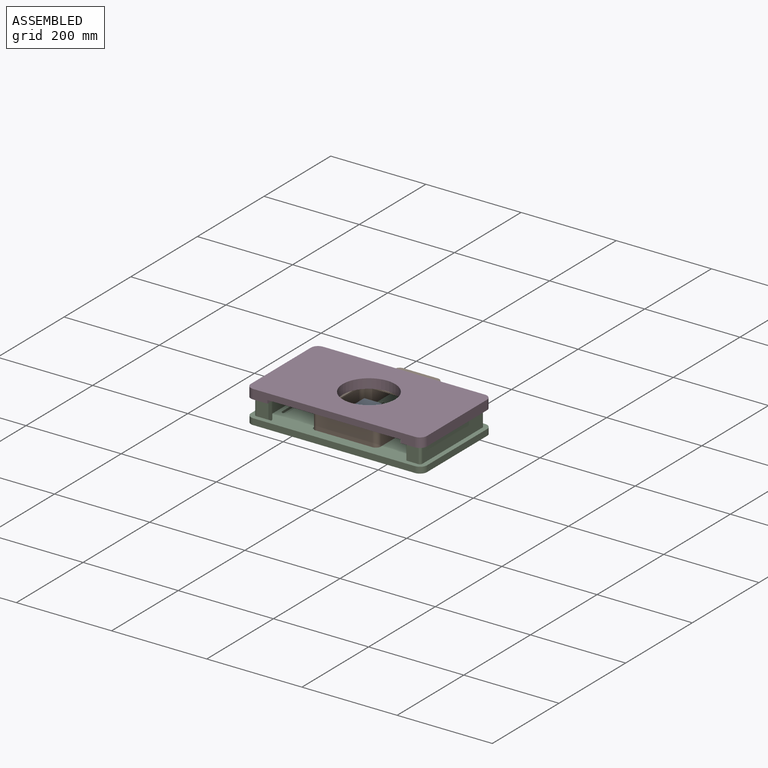
[diagram: assembled view]
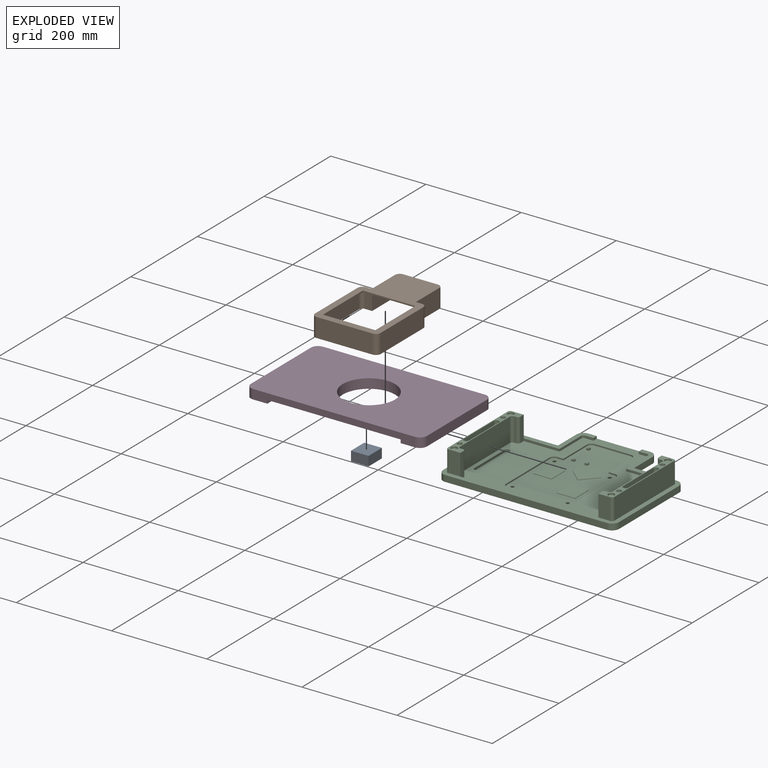
[diagram: exploded view]
GUIDED TOUR — MATED ASSEMBLY (Onshape document f54cb566b7586fcd0a70b049, AutoMate assembly f54cb566b7586fcd0a70b049_cbd9ad29623dc7cc225ec3bc_be883ea0a3c4a5ebd71cd943_default)

This assembly has 4 components, labeled P0..P3 below (a component is one placed occurrence of a part; the same part can appear more than once), held together by 2 mates. A mate is a constraint between two components; its type names the relative motion it leaves free:
  PLANAR — leaves sliding in the plane through the listed point (normal = the listed direction) and rotation about that normal free.
Axis/direction vectors are unit vectors and 'through' points are millimeter coordinates, both in the assembly's world frame.

MATES
  1. PLANAR "Planar 1": P1 <-> P2, direction (0.000, 0.000, -1.000) through (-4.21, 13.48, 19.95) mm
  2. PLANAR "Planar 2": P0 <-> P2, direction (0.000, 0.000, -1.000) through (-31.36, 9.55, 19.95) mm

ASSEMBLY ORDER
  1. P3 — the base component [order verified]
  2. P2 [order verified]
  3. P1 [order verified]
  4. P0 [order verified]
Order-tag legend:
  [order verified] — this step's position reverses a verified removal order: the component was checked to insert without passing through the ones already placed.

Of the 4 components, 2 carry the full construction recipe — the FeatureScript program that regenerates the part's solid from scratch; the rest are supplied as boundary geometry only.
Each toured component is shown spotlighted twice — in the assembled view, then in the exploded view, where a leader line traces a displaced component back to its assembled socket (saturated green if recipe-attached, orange if geometry-only; every other component desaturated gray) — followed by its recipe or geometry summary and the mates that hold it.
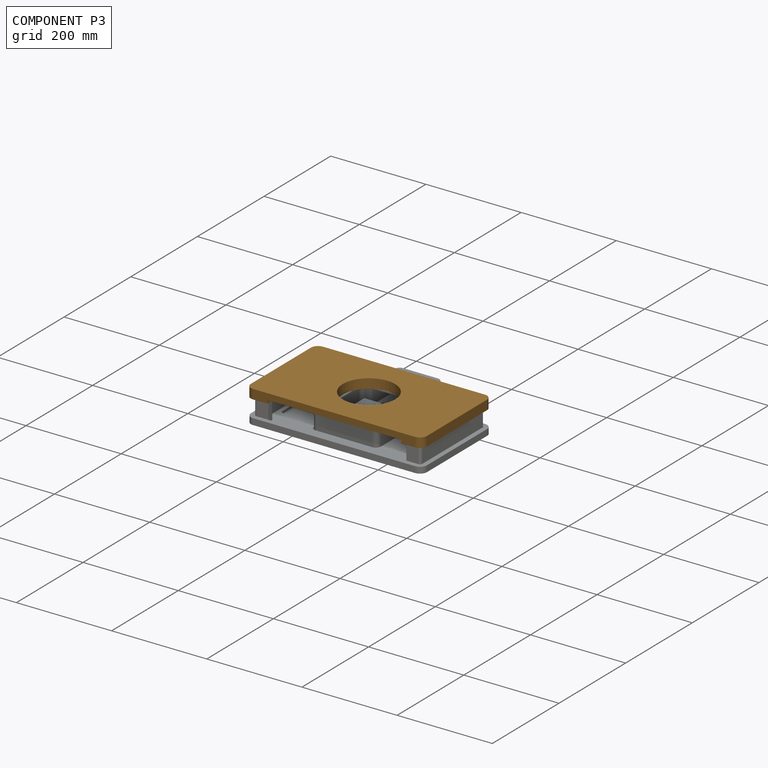
[diagram: component P3 — assembled]
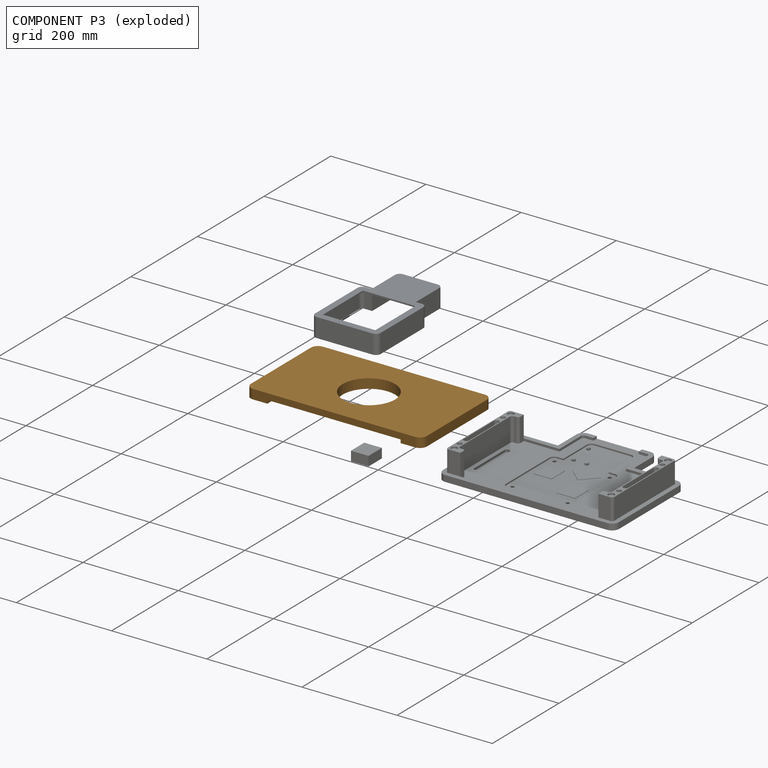
[diagram: component P3 — exploded]
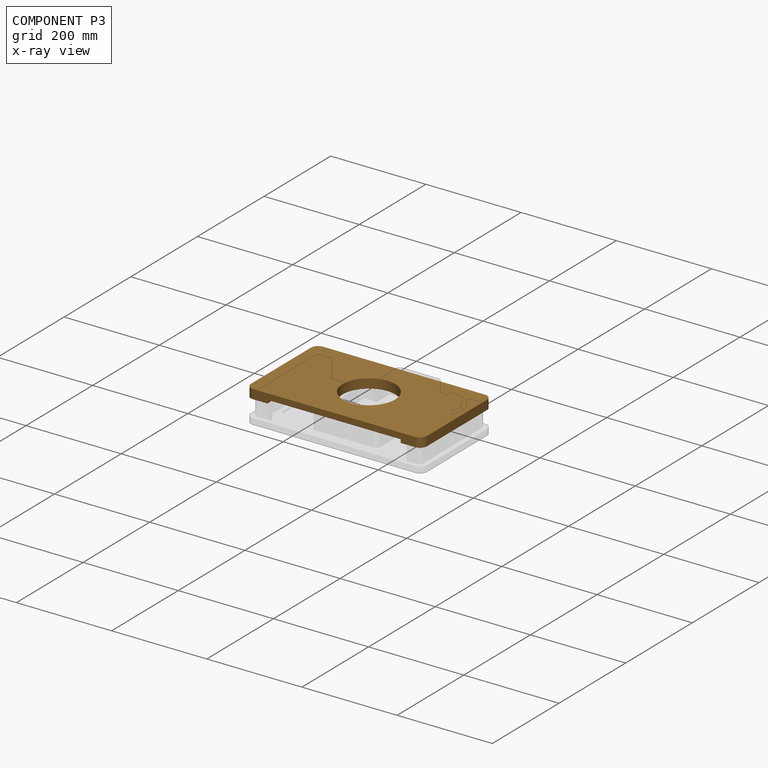
[diagram: component P3 — x-ray view]
COMPONENT P3 — geometry summary (no construction recipe available for this part):
  bounding box: 370.0 x 210.0 x 20.0 mm
  B-rep topology: 1 solid, 129 faces, 622 edges
  volume: 989934 mm^3 (64% of its bounding box)
  symmetry: 2-fold rotationally symmetric about the z axis; mirror-symmetric across its x mid-plane, y mid-plane
Held by: no mates (free).
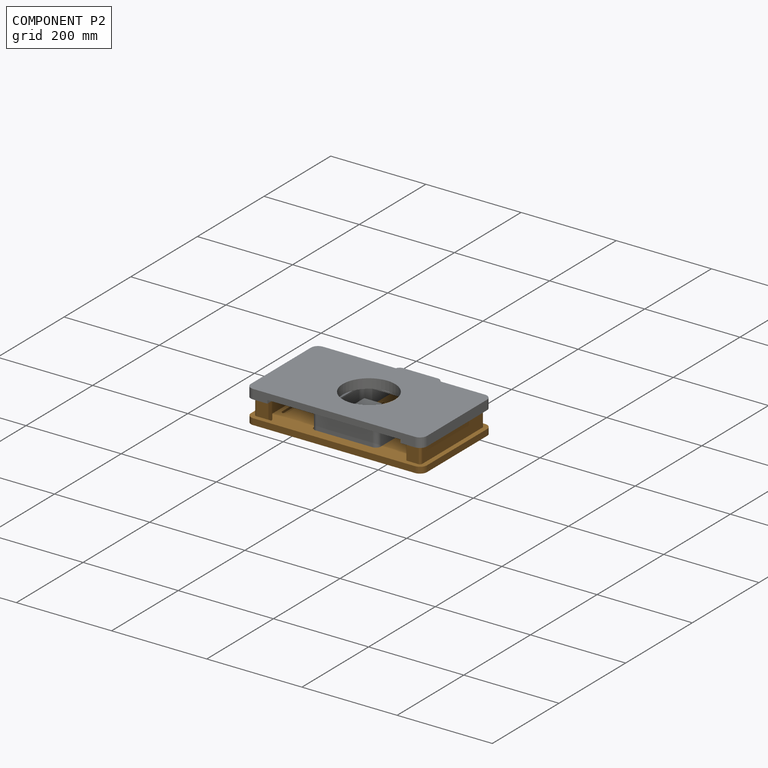
[diagram: component P2 — assembled]
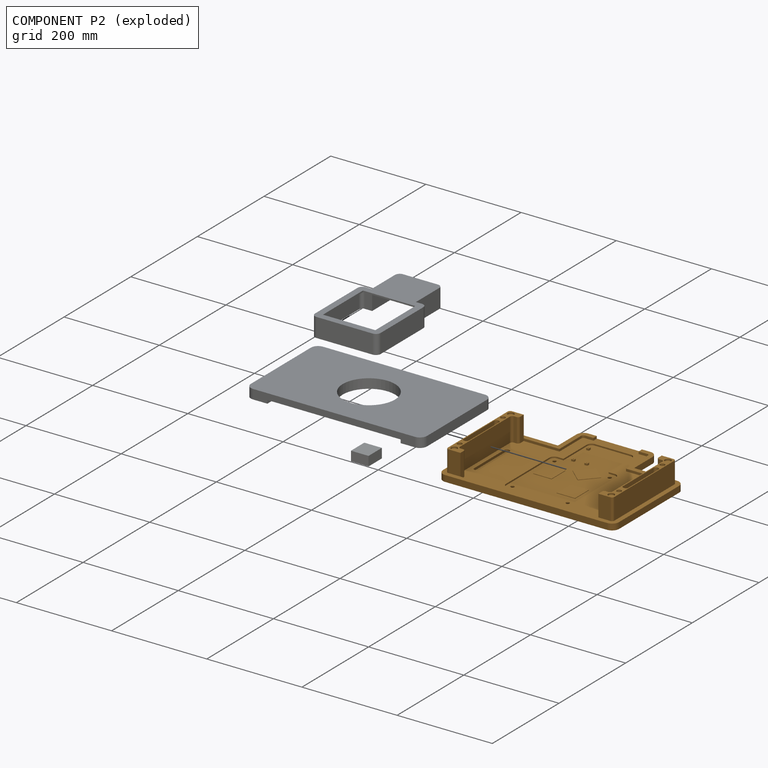
[diagram: component P2 — exploded]
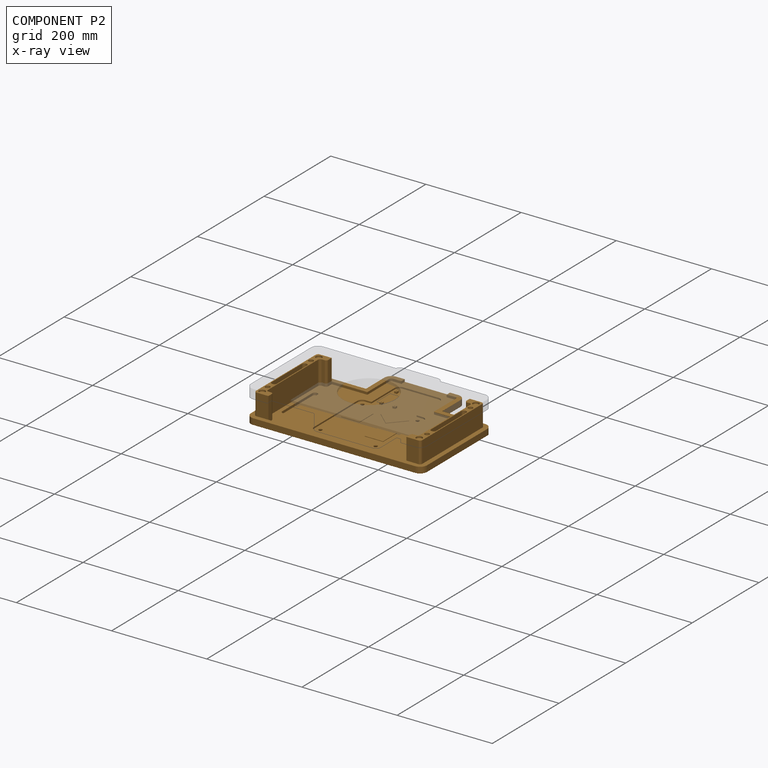
[diagram: component P2 — x-ray view]
COMPONENT P2 — geometry summary (no construction recipe available for this part):
  bounding box: 370.0 x 280.0 x 58.0 mm
  B-rep topology: 1 solid, 197 faces, 990 edges
  volume: 908401 mm^3 (15% of its bounding box)
  symmetry: mirror-symmetric across its x mid-plane
Held by: PLANAR mate "Planar 1" to P1; PLANAR mate "Planar 2" to P0.
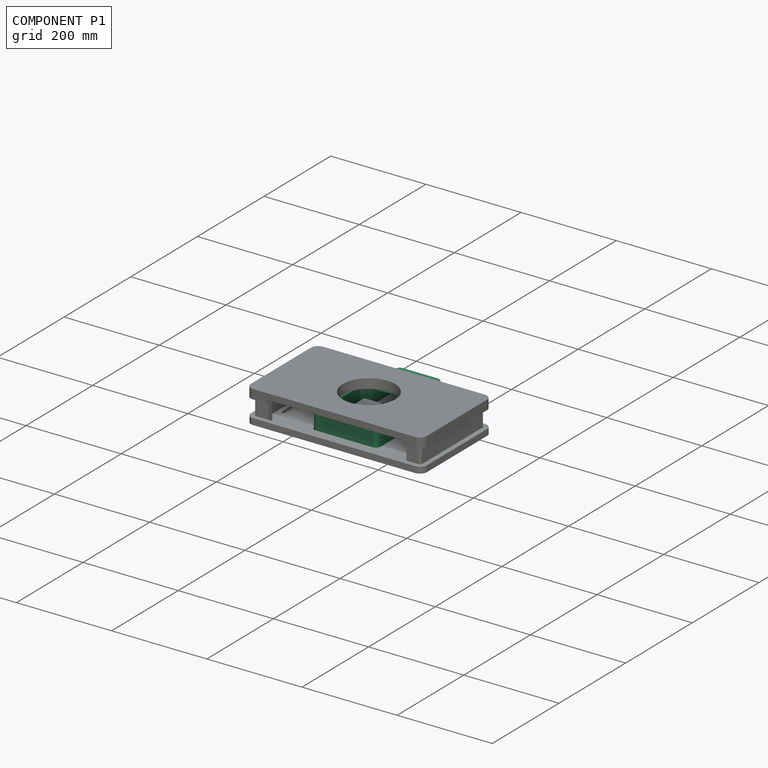
[diagram: component P1 — assembled]
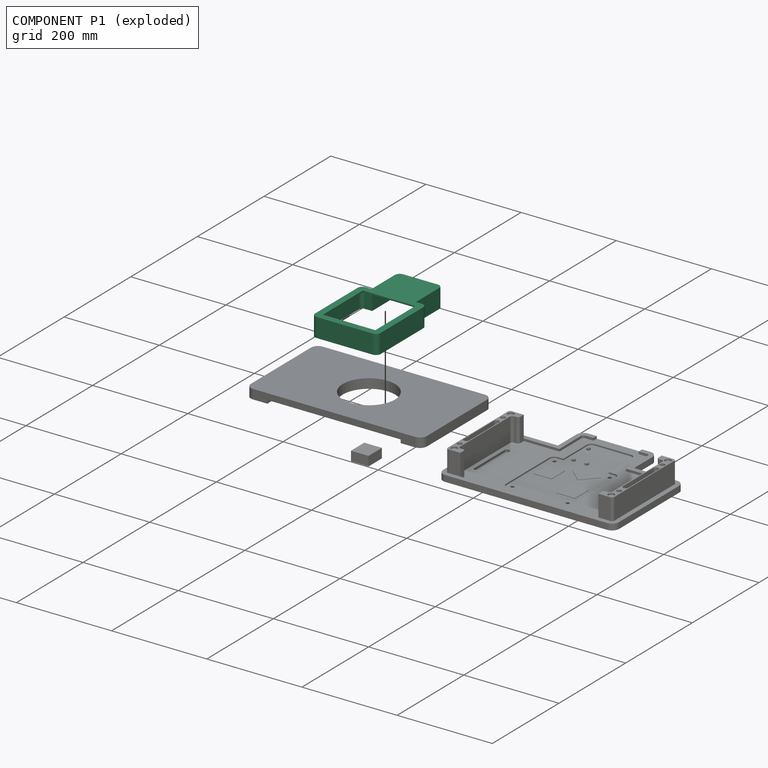
[diagram: component P1 — exploded]
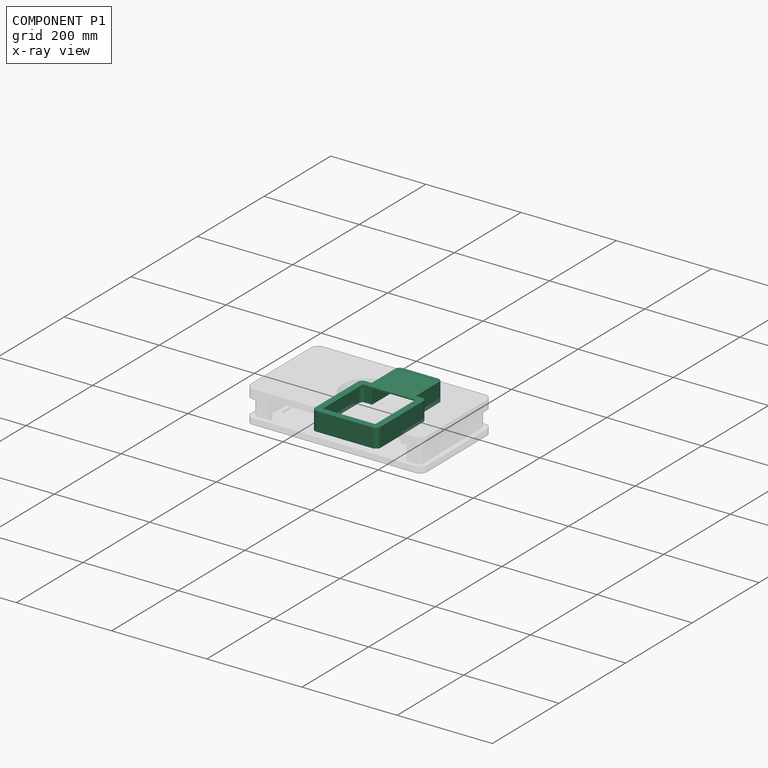
[diagram: component P1 — x-ray view]
COMPONENT P1 — recipe-attached (CADFS 00190204, mesh-verified: the recipe's output STEP matches this component's geometry to below the mesh-comparison resolution (tessellation chordal tolerance ~0.404 mm)).
Held by: PLANAR mate "Planar 1" to P2.
Construction recipe (FeatureScript — the CAD program that rebuilds this solid; sketch coordinates are in the units given by the * unit suffixes, e.g. mm):

FeatureScript 1890;
import(path : "onshape/std/geometry.fs", version : "1890.0");
import(path : "onshape/std/common.fs", version : "1890.0");
const mm = millimeter;
const VERTEX = EntityType.VERTEX;
const EDGE = EntityType.EDGE;
const FACE = EntityType.FACE;
const BODY = EntityType.BODY;
function v(x, y){return vector(x, y);}
function OD(order){return orderDisambiguation(order);}
function OSD(set){return originalSetDisambiguation(set);}
function TD(topology){return topologyDisambiguation(topology);}
function TDD(query){return trueDependencyDisambiguation(query);}
function sQuery(a, b, c) {return sketchEntityQuery(a, b, c);}

annotation { "Feature Type Name" : "Feature", "Feature Type Description" : "" }
export const myFeature = defineFeature(function(context is Context, id is Id, definition is map)
    precondition{}
    {
        {
            var Q0;
            Q0=qCreatedBy(makeId("Top.planeOp"),FACE);
            var sketch = newSketch(context, id + "F0", { "sketchPlane" : qUnion([Q0])});
            skLineSegment(sketch, "E0.bottom", {"start": v(-59, -74) * mm, "end": v(59, -74) * mm});
            skLineSegment(sketch, "E0.left", {"start": v(-69, -64) * mm, "end": v(-69, 64) * mm});
            skLineSegment(sketch, "E0.right", {"start": v(69, -64) * mm, "end": v(69, 64) * mm});
            skPoint(sketch, "E0.middle", {"position": v(0, 0) * mm});
            skPoint(sketch, "E1.top.start.orphan", {"position": v(-41.03, -154) * mm});
            skPoint(sketch, "E2.trimOffspring.end.orphan", {"position": v(51.97, -154) * mm});
            skPoint(sketch, "E1.left.start.orphan", {"position": v(-51.97, 154) * mm});
            skPoint(sketch, "E1.right.start.orphan", {"position": v(41.03, 154) * mm});
            skLineSegment(sketch, "E3", {"start": v(-59, 74) * mm, "end": v(-46.5, 74) * mm});
            skLineSegment(sketch, "E4", {"start": v(-46.5, 74) * mm, "end": v(-46.5, 144) * mm});
            skLineSegment(sketch, "E5", {"start": v(-36.5, 154) * mm, "end": v(36.5, 154) * mm});
            skLineSegment(sketch, "E6", {"start": v(46.5, 144) * mm, "end": v(46.5, 74) * mm});
            skLineSegment(sketch, "E7", {"start": v(46.5, 74) * mm, "end": v(59, 74) * mm});
            skPoint(sketch, "E8.visualSharp", {"position": v(-69, 74) * mm});
            skArc(sketch, "E8.filletArc", {"start": v(-59, 74) * mm, "mid": v(-66.07, 71.07) * mm, "end": v(-69, 64) * mm});
            skPoint(sketch, "E9.visualSharp", {"position": v(69, 74) * mm});
            skArc(sketch, "E9.filletArc", {"start": v(69, 64) * mm, "mid": v(66.07, 71.07) * mm, "end": v(59, 74) * mm});
            skPoint(sketch, "E10.visualSharp", {"position": v(46.5, 154) * mm});
            skArc(sketch, "E10.filletArc", {"start": v(46.5, 144) * mm, "mid": v(43.57, 151.07) * mm, "end": v(36.5, 154) * mm});
            skPoint(sketch, "E11.visualSharp", {"position": v(-46.5, 154) * mm});
            skArc(sketch, "E11.filletArc", {"start": v(-36.5, 154) * mm, "mid": v(-43.57, 151.07) * mm, "end": v(-46.5, 144) * mm});
            skPoint(sketch, "E12.visualSharp", {"position": v(-69, -74) * mm});
            skArc(sketch, "E12.filletArc", {"start": v(-69, -64) * mm, "mid": v(-66.07, -71.07) * mm, "end": v(-59, -74) * mm});
            skPoint(sketch, "E13.visualSharp", {"position": v(69, -74) * mm});
            skArc(sketch, "E13.filletArc", {"start": v(59, -74) * mm, "mid": v(66.07, -71.07) * mm, "end": v(69, -64) * mm});
            skSolve(sketch);
        }
        {
            var Q0;
            Q0 = qSketchRegion(id + "F0", true);
            extrude(context, id + "F1", {"entities" : qUnion([Q0]), "depth" : 40 * mm, "offsetDistance" : 25 * mm});
        }
        {
            var Q0;
            Q0=makeQuery(id+"F1.opExtrude","CAP_FACE",FACE,{"disambiguationData":[OSD([sQuery(id+"F0.wireOp",EDGE,"E0.bottom"),sQuery(id+"F0.wireOp",EDGE,"E0.left"),sQuery(id+"F0.wireOp",EDGE,"E0.right"),sQuery(id+"F0.wireOp",EDGE,"E3"),sQuery(id+"F0.wireOp",EDGE,"E4"),sQuery(id+"F0.wireOp",EDGE,"E5"),sQuery(id+"F0.wireOp",EDGE,"E6"),sQuery(id+"F0.wireOp",EDGE,"E7"),sQuery(id+"F0.wireOp",EDGE,"E8.filletArc"),sQuery(id+"F0.wireOp",EDGE,"E9.filletArc"),sQuery(id+"F0.wireOp",EDGE,"E10.filletArc"),sQuery(id+"F0.wireOp",EDGE,"E11.filletArc"),sQuery(id+"F0.wireOp",EDGE,"E12.filletArc"),sQuery(id+"F0.wireOp",EDGE,"E13.filletArc")])],"isStart":true});
            shell(context, id + "F2", {"entities" : qUnion([Q0]), "thickness" : 3 * mm});
        }
        {
            var Q0;
            Q0=makeQuery(id+"F2.opShell","OFFSET_FACE",FACE,{"disambiguationData":[OSD([sQuery(id+"F0.wireOp",EDGE,"E0.bottom"),sQuery(id+"F0.wireOp",EDGE,"E0.left"),sQuery(id+"F0.wireOp",EDGE,"E0.right"),sQuery(id+"F0.wireOp",EDGE,"E3"),sQuery(id+"F0.wireOp",EDGE,"E4"),sQuery(id+"F0.wireOp",EDGE,"E5"),sQuery(id+"F0.wireOp",EDGE,"E6"),sQuery(id+"F0.wireOp",EDGE,"E7"),sQuery(id+"F0.wireOp",EDGE,"E8.filletArc"),sQuery(id+"F0.wireOp",EDGE,"E9.filletArc"),sQuery(id+"F0.wireOp",EDGE,"E10.filletArc"),sQuery(id+"F0.wireOp",EDGE,"E11.filletArc"),sQuery(id+"F0.wireOp",EDGE,"E12.filletArc"),sQuery(id+"F0.wireOp",EDGE,"E13.filletArc")])]});
            var sketch = newSketch(context, id + "F3", { "sketchPlane" : qUnion([Q0])});
            skLineSegment(sketch, "E14.bottom", {"start": v(-55, 60) * mm, "end": v(55, 60) * mm});
            skLineSegment(sketch, "E14.top", {"start": v(-55, -60) * mm, "end": v(55, -60) * mm});
            skLineSegment(sketch, "E14.left", {"start": v(-55, 60) * mm, "end": v(-55, -60) * mm});
            skLineSegment(sketch, "E14.right", {"start": v(55, 60) * mm, "end": v(55, -60) * mm});
            skSolve(sketch);
        }
        {
            var Q0;
            Q0 = qSketchRegion(id + "F3", true);
            extrude(context, id + "F4", {"entities" : qUnion([Q0]), "operationType" : NewBodyOperationType.REMOVE, "oppositeDirection" : true, "depth" : 25 * mm, "offsetDistance" : 25 * mm});
        }
    });
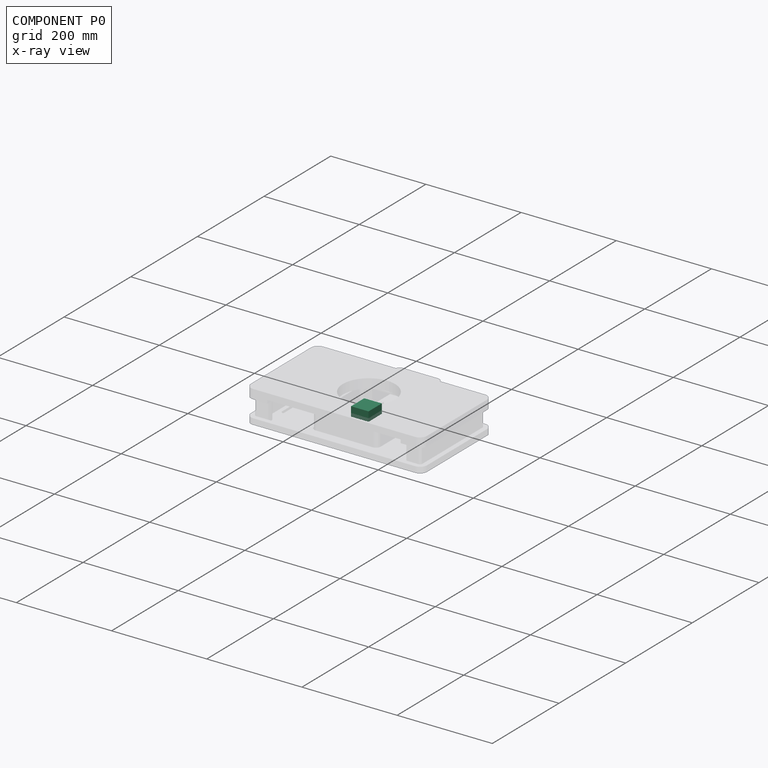
[diagram: component P0 — x-ray view]
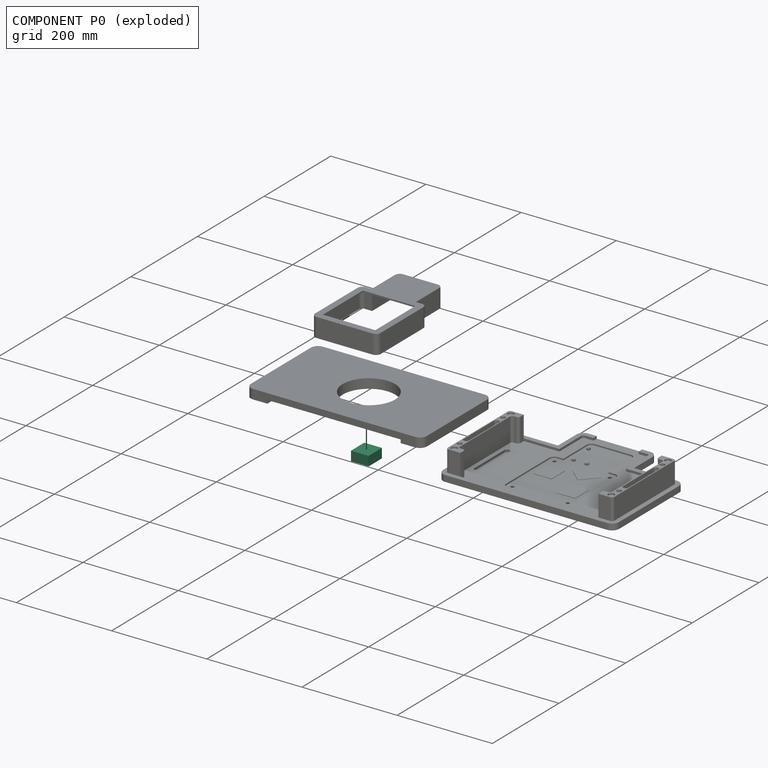
[diagram: component P0 — exploded]
COMPONENT P0 — recipe-attached (CADFS 00190205, mesh-verified: the recipe's output STEP matches this component's geometry to below the mesh-comparison resolution (tessellation chordal tolerance ~0.0871 mm)).
Held by: PLANAR mate "Planar 2" to P2.
Construction recipe (FeatureScript — the CAD program that rebuilds this solid; sketch coordinates are in the units given by the * unit suffixes, e.g. mm):

FeatureScript 1890;
import(path : "onshape/std/geometry.fs", version : "1890.0");
import(path : "onshape/std/common.fs", version : "1890.0");
const mm = millimeter;
const VERTEX = EntityType.VERTEX;
const EDGE = EntityType.EDGE;
const FACE = EntityType.FACE;
const BODY = EntityType.BODY;
function v(x, y){return vector(x, y);}
function OD(order){return orderDisambiguation(order);}
function OSD(set){return originalSetDisambiguation(set);}
function TD(topology){return topologyDisambiguation(topology);}
function TDD(query){return trueDependencyDisambiguation(query);}
function sQuery(a, b, c) {return sketchEntityQuery(a, b, c);}

annotation { "Feature Type Name" : "Feature", "Feature Type Description" : "" }
export const myFeature = defineFeature(function(context is Context, id is Id, definition is map)
    precondition{}
    {
        {
            var Q0;
            Q0=qCreatedBy(makeId("Top.planeOp"),FACE);
            var sketch = newSketch(context, id + "F0", { "sketchPlane" : qUnion([Q0])});
            skLineSegment(sketch, "E0.bottom", {"start": v(-17.5, 21.42) * mm, "end": v(2.5, 21.42) * mm});
            skLineSegment(sketch, "E0.top", {"start": v(-17.5, -18.58) * mm, "end": v(2.5, -18.58) * mm});
            skLineSegment(sketch, "E0.left", {"start": v(-17.5, 21.42) * mm, "end": v(-17.5, -18.58) * mm});
            skLineSegment(sketch, "E0.right", {"start": v(2.5, 21.42) * mm, "end": v(2.5, -18.58) * mm});
            skSolve(sketch);
        }
        {
            var Q0;
            Q0=makeQuery(id+"F0.imprint","IMPRINT",FACE,{"disambiguationData":[TD([[makeQuery(id+"F0.imprint","IMPRINT",EDGE,{"derivedFrom":sQuery(id+"F0.wireOp",EDGE,"E0.bottom")}),-1.0]])]});
            extrude(context, id + "F1", {"entities" : qUnion([Q0]), "depth" : 37 * mm, "offsetDistance" : 25 * mm});
        }
    });
PROVENANCE & LICENSES
Assembly (occurrences, transforms, mates, per-part STEP geometry): AutoMate dataset, Zenodo record 7776208, CC0.
Construction recipes: CADFS (HuggingFace VladPyatov/CADFS, CC-BY-4.0, layered over the ABC dataset), FeatureScript reconstruction programs keyed by ABC model id.
Join: ABC meta listings map ABC model id -> Onshape documentId; within a shared document, parts are matched by geometric signature (bounding-box dims + volume at 0.1% relative tolerance, exact B-rep face/solid counts).
Verification: 2 of this assembly's 4 components carry a recipe attachment, and every attachment is mesh-verified: the CADFS STEP and the AutoMate member STEP were compared as meshes in their shared local frame (symmetric sampled-point-to-mesh distance); worst across the 2 attachments: below the mesh-comparison resolution (tessellation chordal tolerance ~0.404 mm) on a 269 mm part.
Renders: orthographic iso camera (az 35 / el 25); the floor grid conveys scale (grid pitch printed in each image; no ruler). In the exploded view each component is displaced by its stored offset vector: the offsets alone carry the explosion direction (mate normal/axis signs are not orientation cues and do not encode it), and separation distances are assigned per mate-chain, not proportionally to assembly-order depth.
